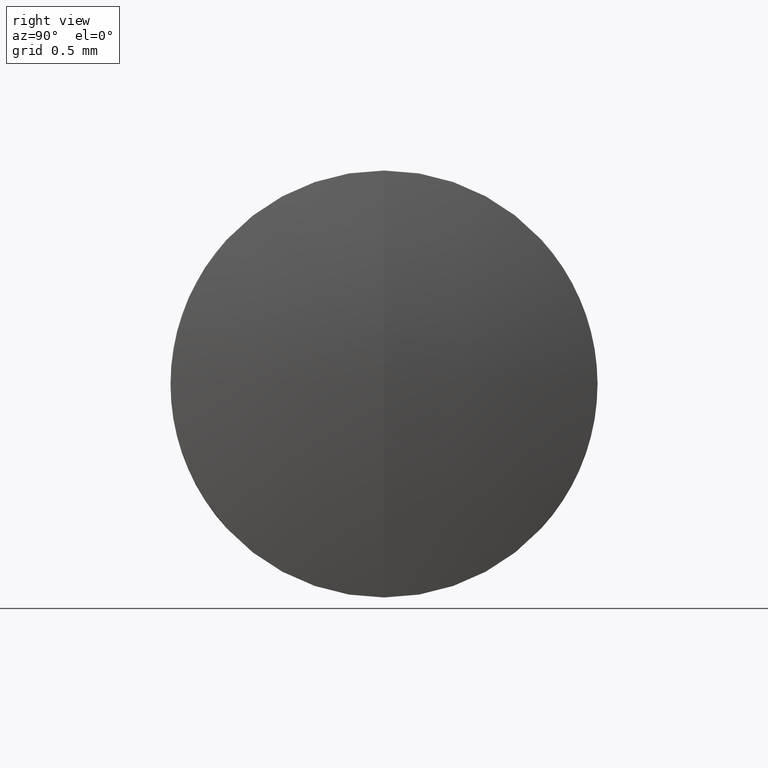
[diagram: clean part render]
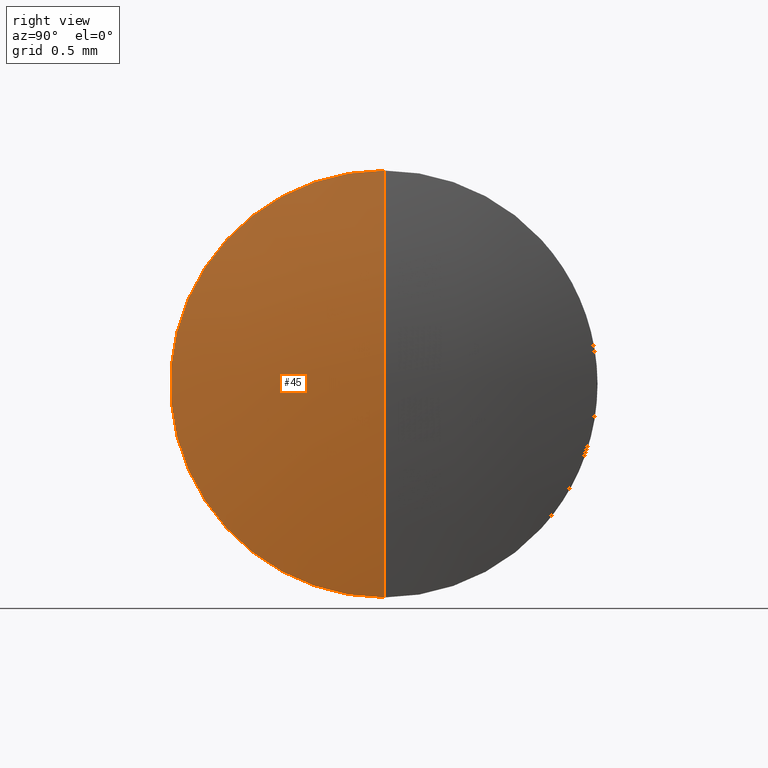
[diagram: same view with one face highlighted and labeled with its STEP entity id]
A machine part, right view. The second image highlights one B-rep face of the part: STEP entity #45.
In plain terms, the highlighted spherical surface has radius 7.96 mm.
Its self-contained STEP definition (entity closure, byte-faithful):
#8 = DIRECTION ( 'NONE',  ( 0.0000000000000000000, 1.000000000000000000, -0.0000000000000000000 ) ) ;
#10 = DIRECTION ( 'NONE',  ( 0.0000000000000000000, 1.224646799147353200E-016, -1.000000000000000000 ) ) ;
#15 = EDGE_CURVE ( 'NONE', #262, #80, #70, .T. ) ;
#21 = CARTESIAN_POINT ( 'NONE',  ( 2.825212435233174900, 0.0000000000000000000, -4.874094260606465300E-016 ) ) ;
#28 = VERTEX_POINT ( 'NONE', #146 ) ;
#32 = CIRCLE ( 'NONE', #295, 1.500000000000000000 ) ;
#45 = ADVANCED_FACE ( 'NONE', ( #122 ), #149, .T. ) ;
#65 = DIRECTION ( 'NONE',  ( -0.0000000000000000000, -1.000000000000000000, -0.0000000000000000000 ) ) ;
#67 = ORIENTED_EDGE ( 'NONE', *, *, #155, .F. ) ;
#70 = CIRCLE ( 'NONE', #90, 7.960000000000000000 ) ;
#80 = VERTEX_POINT ( 'NONE', #303 ) ;
#87 = DIRECTION ( 'NONE',  ( 0.0000000000000000000, -1.000000000000000000, -1.224646799147353200E-016 ) ) ;
#90 = AXIS2_PLACEMENT_3D ( 'NONE', #248, #87, #10 ) ;
#103 = ORIENTED_EDGE ( 'NONE', *, *, #297, .F. ) ;
#122 = FACE_OUTER_BOUND ( 'NONE', #222, .T. ) ;
#126 = ORIENTED_EDGE ( 'NONE', *, *, #15, .T. ) ;
#138 = DIRECTION ( 'NONE',  ( -1.000000000000000000, -0.0000000000000000000, -0.0000000000000000000 ) ) ;
#146 = CARTESIAN_POINT ( 'NONE',  ( 2.682603304314751000, 0.0000000000000000000, -1.500000000000000000 ) ) ;
#148 = AXIS2_PLACEMENT_3D ( 'NONE', #306, #65, #274 ) ;
#149 = SPHERICAL_SURFACE ( 'NONE', #148, 7.960000000000000000 ) ;
#155 = EDGE_CURVE ( 'NONE', #28, #80, #32, .T. ) ;
#158 = AXIS2_PLACEMENT_3D ( 'NONE', #198, #8, #172 ) ;
#172 = DIRECTION ( 'NONE',  ( 0.0000000000000000000, 0.0000000000000000000, 1.000000000000000000 ) ) ;
#198 = CARTESIAN_POINT ( 'NONE',  ( -5.134787564766825500, 0.0000000000000000000, 0.0000000000000000000 ) ) ;
#222 = EDGE_LOOP ( 'NONE', ( #103, #126, #67 ) ) ;
#248 = CARTESIAN_POINT ( 'NONE',  ( -5.134787564766825500, 0.0000000000000000000, 0.0000000000000000000 ) ) ;
#262 = VERTEX_POINT ( 'NONE', #21 ) ;
#274 = DIRECTION ( 'NONE',  ( 0.0000000000000000000, 0.0000000000000000000, -1.000000000000000000 ) ) ;
#292 = DIRECTION ( 'NONE',  ( 0.0000000000000000000, 0.0000000000000000000, 1.000000000000000000 ) ) ;
#295 = AXIS2_PLACEMENT_3D ( 'NONE', #326, #138, #292 ) ;
#297 = EDGE_CURVE ( 'NONE', #262, #28, #311, .T. ) ;
#303 = CARTESIAN_POINT ( 'NONE',  ( 2.682603304314751000, -1.836970198721029900E-016, 1.500000000000000000 ) ) ;
#306 = CARTESIAN_POINT ( 'NONE',  ( -5.134787564766825500, 0.0000000000000000000, 0.0000000000000000000 ) ) ;
#311 = CIRCLE ( 'NONE', #158, 7.960000000000000000 ) ;
#326 = CARTESIAN_POINT ( 'NONE',  ( 2.682603304314750600, 0.0000000000000000000, 0.0000000000000000000 ) ) ;